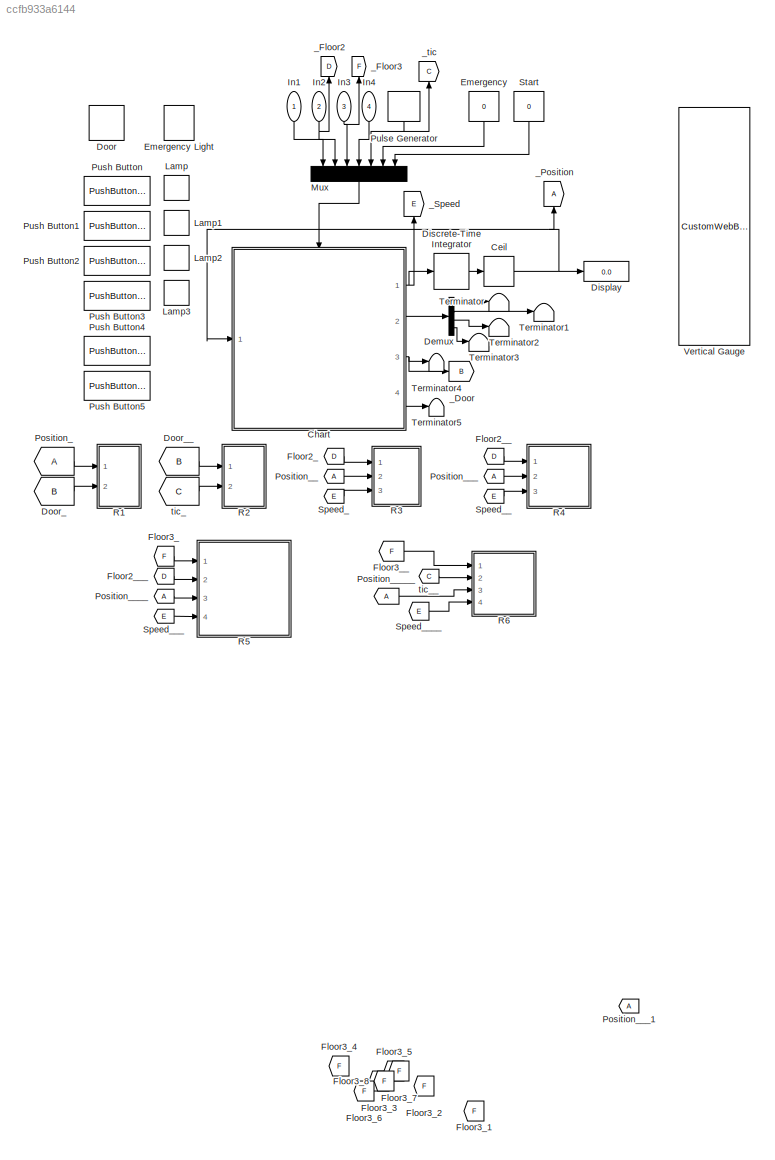
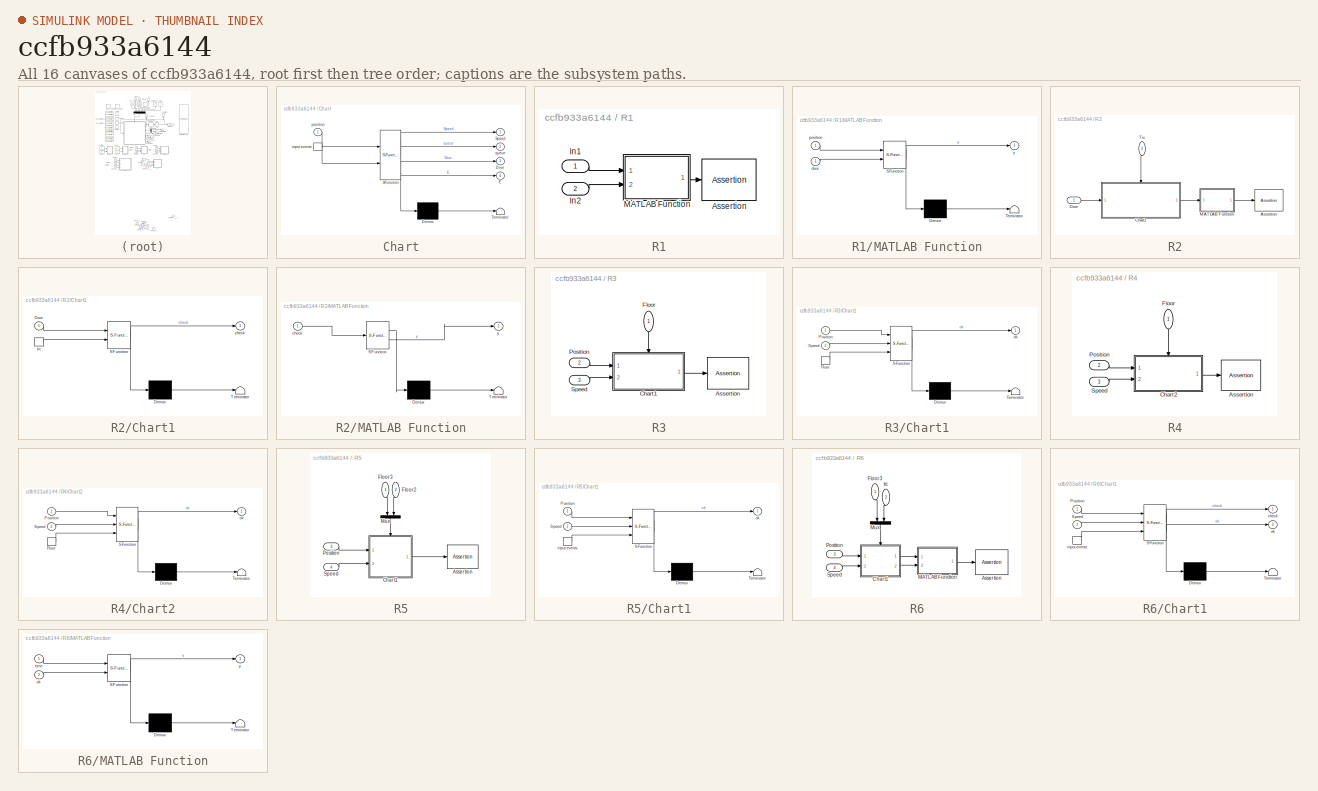
[diagram: thumbnail index - all 16 canvases of the model, root first then tree order]
MODEL slx_ccfb933a6144
KIND model
CONFIG AbsTol = auto
CONFIG EnableMultiTasking = off
CONFIG FixedStep = auto
CONFIG MaxStep = auto
CONFIG MinStep = auto
CONFIG RelTol = 1e-3
CONFIG SampleTimeConstraint = Unconstrained
CONFIG Solver = FixedStepAuto
CONFIG SolverName = FixedStepAuto
CONFIG StartTime = 0.0
CONFIG StopTime = inf
BLOCK [Rounding] Ceil
  Operator = ceil
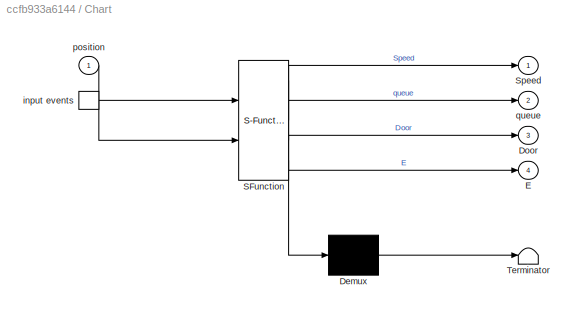
BLOCK [SubSystem] Chart
  ErrorFcn = Stateflow.Translate.translate
  PermitHierarchicalResolution = ExplicitOnly
  Ports = [1, 4, 0, 1]
  RequestExecContextInheritance = off
  SFBlockType = Chart
  TreatAsAtomicUnit = on
BLOCK [Demux] Chart/ Demux 
  Outputs = 1
  Ports = [1, 1]
BLOCK [S-Function] Chart/ SFunction 
  EnableBusSupport = on
  FunctionName = sf_sfun
  PortCounts = [2 5]
  Ports = [2, 5]
  SFcnIsStateOwnerBlock = off
  SFunctionDeploymentMode = off
  Tag = Stateflow S-Function 3
BLOCK [Terminator] Chart/ Terminator 
BLOCK [Outport] Chart/Door
  Port = 3
BLOCK [Outport] Chart/E
  Port = 4
BLOCK [Outport] Chart/Speed
BLOCK [TriggerPort] Chart/input events
  Ports = [0, 1]
  ShowOutputPort = on
  StatesWhenEnabling = held
  VariantControl = (inherit)
BLOCK [Inport] Chart/position
BLOCK [Outport] Chart/queue
  Port = 2
BLOCK [Demux] Demux
  Ports = [1, 4]
BLOCK [DiscreteIntegrator] Discrete-Time Integrator
  ICPrevOutput = DiscIntNeverNeededParam
  ICPrevScaledInput = DiscIntNeverNeededParam
  InitialCondition = 0.001
  InitialConditionSetting = Auto
  Ports = [1, 1]
  SampleTime = -1
BLOCK [Display] Display
  Decimation = 1
  Ports = [1]
BLOCK [LampBlock] Door
BLOCK [From] Door_
  GotoTag = B
BLOCK [From] Door__
  GotoTag = B
  NameLocation = top
BLOCK [Constant] Emergency
  NameLocation = top
  Value = 0
BLOCK [LampBlock] Emergency Light
BLOCK [From] Floor2_
  GotoTag = D
  NameLocation = left
BLOCK [From] Floor2__
  GotoTag = D
  NameLocation = left
BLOCK [From] Floor2___
  GotoTag = D
  NameLocation = left
BLOCK [From] Floor3_
  GotoTag = F
  NameLocation = left
BLOCK [From] Floor3_1
  GotoTag = F
  NameLocation = left
BLOCK [From] Floor3_2
  GotoTag = F
  NameLocation = left
BLOCK [From] Floor3_3
  GotoTag = F
  NameLocation = left
BLOCK [From] Floor3_4
  GotoTag = F
  NameLocation = left
BLOCK [From] Floor3_5
  GotoTag = F
  NameLocation = left
BLOCK [From] Floor3_6
  GotoTag = F
  NameLocation = left
BLOCK [From] Floor3_7
  GotoTag = F
  NameLocation = left
BLOCK [From] Floor3_8
  GotoTag = F
  NameLocation = left
BLOCK [From] Floor3__
  GotoTag = F
  NameLocation = left
BLOCK [Inport] In1
  NameLocation = left
BLOCK [Inport] In2
  NameLocation = left
  Port = 2
BLOCK [Inport] In3
  NameLocation = left
  Port = 3
BLOCK [Inport] In4
  NameLocation = left
  Port = 4
BLOCK [LampBlock] Lamp
BLOCK [LampBlock] Lamp1
BLOCK [LampBlock] Lamp2
BLOCK [LampBlock] Lamp3
BLOCK [Mux] Mux
  DisplayOption = bar
  Inputs = 7
  NameLocation = left
  Ports = [7, 1]
BLOCK [From] Position_
  NameLocation = top
BLOCK [From] Position__
  NameLocation = left
BLOCK [From] Position___
  NameLocation = left
BLOCK [From] Position___1
  NameLocation = left
BLOCK [From] Position____
  NameLocation = left
BLOCK [From] Position_____
  NameLocation = left
BLOCK [DiscretePulseGenerator] Pulse Generator
  NameLocation = left
  Period = 1
  Ports = [0, 1]
  PulseType = Time based
  PulseWidth = 50
BLOCK [PushButtonBlock] Push Button
  ButtonText = floor1
BLOCK [PushButtonBlock] Push Button1
  ButtonText = floor2
BLOCK [PushButtonBlock] Push Button2
  ButtonText = floor3
BLOCK [PushButtonBlock] Push Button3
  ButtonText = floor4
BLOCK [PushButtonBlock] Push Button4
  ButtonText = Emergency
BLOCK [PushButtonBlock] Push Button5
  ButtonText = Start
BLOCK [SubSystem] R1
  Ports = [2]
  RequestExecContextInheritance = off
BLOCK [Assertion] R1/Assertion
BLOCK [Inport] R1/In1
BLOCK [Inport] R1/In2
  Port = 2
BLOCK [SubSystem] R1/MATLAB Function
  ErrorFcn = Stateflow.Translate.translate
  PermitHierarchicalResolution = ExplicitOnly
  Ports = [2, 1]
  RequestExecContextInheritance = off
  SFBlockType = MATLAB Function
  TreatAsAtomicUnit = on
BLOCK [Demux] R1/MATLAB Function/ Demux 
  Outputs = 1
  Ports = [1, 1]
BLOCK [S-Function] R1/MATLAB Function/ SFunction 
  EnableBusSupport = on
  FunctionName = sf_sfun
  PortCounts = [2 2]
  Ports = [2, 2]
  SFcnIsStateOwnerBlock = off
  SFunctionDeploymentMode = off
  Tag = Stateflow S-Function 2
BLOCK [Terminator] R1/MATLAB Function/ Terminator 
BLOCK [Inport] R1/MATLAB Function/door
  Port = 2
BLOCK [Inport] R1/MATLAB Function/position
BLOCK [Outport] R1/MATLAB Function/y
BLOCK [SubSystem] R2
  Ports = [2]
  RequestExecContextInheritance = off
BLOCK [Assertion] R2/Assertion
BLOCK [SubSystem] R2/Chart1
  ErrorFcn = Stateflow.Translate.translate
  PermitHierarchicalResolution = ExplicitOnly
  Ports = [1, 1, 0, 1]
  RequestExecContextInheritance = off
  SFBlockType = Chart
  TreatAsAtomicUnit = on
BLOCK [Demux] R2/Chart1/ Demux 
  Outputs = 1
  Ports = [1, 1]
BLOCK [S-Function] R2/Chart1/ SFunction 
  EnableBusSupport = on
  FunctionName = sf_sfun
  PortCounts = [2 2]
  Ports = [2, 2]
  SFcnIsStateOwnerBlock = off
  SFunctionDeploymentMode = off
  Tag = Stateflow S-Function 1
BLOCK [Terminator] R2/Chart1/ Terminator 
BLOCK [Inport] R2/Chart1/Door
BLOCK [Outport] R2/Chart1/check
BLOCK [TriggerPort] R2/Chart1/tic
  Ports = [0, 1]
  ShowOutputPort = on
  StatesWhenEnabling = held
  VariantControl = (inherit)
BLOCK [Inport] R2/Door
BLOCK [SubSystem] R2/MATLAB Function
  ErrorFcn = Stateflow.Translate.translate
  PermitHierarchicalResolution = ExplicitOnly
  Ports = [1, 1]
  RequestExecContextInheritance = off
  SFBlockType = MATLAB Function
  TreatAsAtomicUnit = on
BLOCK [Demux] R2/MATLAB Function/ Demux 
  Outputs = 1
  Ports = [1, 1]
BLOCK [S-Function] R2/MATLAB Function/ SFunction 
  EnableBusSupport = on
  FunctionName = sf_sfun
  PortCounts = [1 2]
  Ports = [1, 2]
  SFcnIsStateOwnerBlock = off
  SFunctionDeploymentMode = off
  Tag = Stateflow S-Function 4
BLOCK [Terminator] R2/MATLAB Function/ Terminator 
BLOCK [Inport] R2/MATLAB Function/check
BLOCK [Outport] R2/MATLAB Function/y
BLOCK [Inport] R2/Tic
  NameLocation = left
  Port = 2
BLOCK [SubSystem] R3
  Ports = [3]
  RequestExecContextInheritance = off
BLOCK [Assertion] R3/Assertion
BLOCK [SubSystem] R3/Chart1
  ErrorFcn = Stateflow.Translate.translate
  PermitHierarchicalResolution = ExplicitOnly
  Ports = [2, 1, 0, 1]
  RequestExecContextInheritance = off
  SFBlockType = Chart
  TreatAsAtomicUnit = on
BLOCK [Demux] R3/Chart1/ Demux 
  Outputs = 1
  Ports = [1, 1]
BLOCK [S-Function] R3/Chart1/ SFunction 
  EnableBusSupport = on
  FunctionName = sf_sfun
  PortCounts = [3 2]
  Ports = [3, 2]
  SFcnIsStateOwnerBlock = off
  SFunctionDeploymentMode = off
  Tag = Stateflow S-Function 5
BLOCK [Terminator] R3/Chart1/ Terminator 
BLOCK [TriggerPort] R3/Chart1/Floor
  Ports = [0, 1]
  ShowOutputPort = on
  StatesWhenEnabling = held
  VariantControl = (inherit)
BLOCK [Inport] R3/Chart1/Position
BLOCK [Inport] R3/Chart1/Speed
  Port = 2
BLOCK [Outport] R3/Chart1/ok
BLOCK [Inport] R3/Floor
  NameLocation = right
BLOCK [Inport] R3/Position
  NameLocation = top
  Port = 2
BLOCK [Inport] R3/Speed
  Port = 3
BLOCK [SubSystem] R4
  Ports = [3]
  RequestExecContextInheritance = off
BLOCK [Assertion] R4/Assertion
BLOCK [SubSystem] R4/Chart2
  ErrorFcn = Stateflow.Translate.translate
  PermitHierarchicalResolution = ExplicitOnly
  Ports = [2, 1, 0, 1]
  RequestExecContextInheritance = off
  SFBlockType = Chart
  TreatAsAtomicUnit = on
BLOCK [Demux] R4/Chart2/ Demux 
  Outputs = 1
  Ports = [1, 1]
BLOCK [S-Function] R4/Chart2/ SFunction 
  EnableBusSupport = on
  FunctionName = sf_sfun
  PortCounts = [3 2]
  Ports = [3, 2]
  SFcnIsStateOwnerBlock = off
  SFunctionDeploymentMode = off
  Tag = Stateflow S-Function 7
BLOCK [Terminator] R4/Chart2/ Terminator 
BLOCK [TriggerPort] R4/Chart2/Floor
  Ports = [0, 1]
  ShowOutputPort = on
  StatesWhenEnabling = held
  VariantControl = (inherit)
BLOCK [Inport] R4/Chart2/Position
BLOCK [Inport] R4/Chart2/Speed
  Port = 2
BLOCK [Outport] R4/Chart2/ok
BLOCK [Inport] R4/Floor
  NameLocation = left
BLOCK [Inport] R4/Position
  NameLocation = top
  Port = 2
BLOCK [Inport] R4/Speed
  Port = 3
BLOCK [SubSystem] R5
  Ports = [4]
  RequestExecContextInheritance = off
BLOCK [Inport] R5/	Floor3
  NameLocation = left
BLOCK [Assertion] R5/Assertion
BLOCK [SubSystem] R5/Chart1
  ErrorFcn = Stateflow.Translate.translate
  PermitHierarchicalResolution = ExplicitOnly
  Ports = [2, 1, 0, 1]
  RequestExecContextInheritance = off
  SFBlockType = Chart
  TreatAsAtomicUnit = on
BLOCK [Demux] R5/Chart1/ Demux 
  Outputs = 1
  Ports = [1, 1]
BLOCK [S-Function] R5/Chart1/ SFunction 
  EnableBusSupport = on
  FunctionName = sf_sfun
  PortCounts = [3 2]
  Ports = [3, 2]
  SFcnIsStateOwnerBlock = off
  SFunctionDeploymentMode = off
  Tag = Stateflow S-Function 6
BLOCK [Terminator] R5/Chart1/ Terminator 
BLOCK [Inport] R5/Chart1/Position
BLOCK [Inport] R5/Chart1/Speed
  Port = 2
BLOCK [TriggerPort] R5/Chart1/input events
  Ports = [0, 1]
  ShowOutputPort = on
  StatesWhenEnabling = held
  VariantControl = (inherit)
BLOCK [Outport] R5/Chart1/ok
BLOCK [Inport] R5/Floor2
  NameLocation = right
  Port = 2
BLOCK [Mux] R5/Mux
  DisplayOption = bar
  Inputs = 2
  NameLocation = left
  Ports = [2, 1]
BLOCK [Inport] R5/Position
  NameLocation = top
  Port = 3
BLOCK [Inport] R5/Speed
  Port = 4
BLOCK [SubSystem] R6
  Ports = [4]
  RequestExecContextInheritance = off
BLOCK [Assertion] R6/Assertion
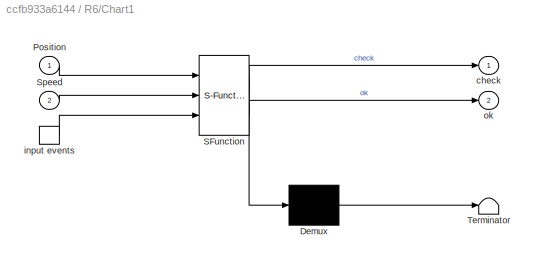
BLOCK [SubSystem] R6/Chart1
  ErrorFcn = Stateflow.Translate.translate
  PermitHierarchicalResolution = ExplicitOnly
  Ports = [2, 2, 0, 1]
  RequestExecContextInheritance = off
  SFBlockType = Chart
  TreatAsAtomicUnit = on
BLOCK [Demux] R6/Chart1/ Demux 
  Outputs = 1
  Ports = [1, 1]
BLOCK [S-Function] R6/Chart1/ SFunction 
  EnableBusSupport = on
  FunctionName = sf_sfun
  PortCounts = [3 3]
  Ports = [3, 3]
  SFcnIsStateOwnerBlock = off
  SFunctionDeploymentMode = off
  Tag = Stateflow S-Function 8
BLOCK [Terminator] R6/Chart1/ Terminator 
BLOCK [Inport] R6/Chart1/Position
BLOCK [Inport] R6/Chart1/Speed
  Port = 2
BLOCK [Outport] R6/Chart1/check
BLOCK [TriggerPort] R6/Chart1/input events
  Ports = [0, 1]
  ShowOutputPort = on
  StatesWhenEnabling = held
  VariantControl = (inherit)
BLOCK [Outport] R6/Chart1/ok
  Port = 2
BLOCK [Inport] R6/Floor3
  NameLocation = left
BLOCK [SubSystem] R6/MATLAB Function
  ErrorFcn = Stateflow.Translate.translate
  PermitHierarchicalResolution = ExplicitOnly
  Ports = [2, 1]
  RequestExecContextInheritance = off
  SFBlockType = MATLAB Function
  TreatAsAtomicUnit = on
BLOCK [Demux] R6/MATLAB Function/ Demux 
  Outputs = 1
  Ports = [1, 1]
BLOCK [S-Function] R6/MATLAB Function/ SFunction 
  EnableBusSupport = on
  FunctionName = sf_sfun
  PortCounts = [2 2]
  Ports = [2, 2]
  SFcnIsStateOwnerBlock = off
  SFunctionDeploymentMode = off
  Tag = Stateflow S-Function 9
BLOCK [Terminator] R6/MATLAB Function/ Terminator 
BLOCK [Inport] R6/MATLAB Function/ok
  Port = 2
BLOCK [Inport] R6/MATLAB Function/time
BLOCK [Outport] R6/MATLAB Function/y
BLOCK [Mux] R6/Mux
  DisplayOption = bar
  Inputs = 2
  NameLocation = left
  Ports = [2, 1]
BLOCK [Inport] R6/Position
  NameLocation = top
  Port = 3
BLOCK [Inport] R6/Speed
  Port = 4
BLOCK [Inport] R6/tic
  NameLocation = right
  Port = 2
BLOCK [From] Speed_
  GotoTag = E
  NameLocation = left
BLOCK [From] Speed__
  GotoTag = E
  NameLocation = left
BLOCK [From] Speed___
  GotoTag = E
  NameLocation = left
BLOCK [From] Speed____
  GotoTag = E
  NameLocation = left
BLOCK [Constant] Start
  NameLocation = top
  Value = 0
BLOCK [Terminator] Terminator
BLOCK [Terminator] Terminator1
BLOCK [Terminator] Terminator2
BLOCK [Terminator] Terminator3
BLOCK [Terminator] Terminator4
BLOCK [Terminator] Terminator5
BLOCK [CustomWebBlock] Vertical Gauge
  Configuration = {"components":[{"name":"LinearScaleComponent","settings":{"bounds":{"max":4,"min":1,"tickInterval":"auto"},"labelColor":[250,245,199],"labelFont":{"font":"Arial","fontSize":12},"labelTransparency":1,"needleImage":{"size":[21,75],"src":"data:image\/svg+xml;base64,PHN2ZyB4bWxucz0iaHR0cDovL3d3dy53My5vcmcvMjAwMC9zdmciIHhtbG5zOnhsaW5rPSJodHRwOi8vd3d3LnczLm9yZy8xOTk5L3hsaW5rIiB2aWV3Qm94PSIwIDAgMjEgNzUiP...<+5497ch>
  ShowInitialText = on
BLOCK [Goto] _Door
  GotoTag = B
BLOCK [Goto] _Floor2
  GotoTag = D
  NameLocation = left
BLOCK [Goto] _Floor3
  GotoTag = F
  NameLocation = right
BLOCK [Goto] _Position
  NameLocation = right
BLOCK [Goto] _Speed
  GotoTag = E
  NameLocation = right
BLOCK [Goto] _tic
  GotoTag = C
  NameLocation = top
BLOCK [From] tic_
  GotoTag = C
BLOCK [From] tic__
  GotoTag = C
  NameLocation = left
NET Ceil:1 -> Chart:1, Display:1, _Position:1
NET Chart:1 -> Discrete-Time Integrator:1, _Speed:1
LINE Chart:2 -> Demux:1
NET Chart:3 -> Terminator4:1, _Door:1
LINE Chart:4 -> Terminator5:1
LINE Demux:1 -> Terminator:1
LINE Demux:2 -> Terminator1:1
LINE Demux:3 -> Terminator2:1
LINE Demux:4 -> Terminator3:1
LINE Discrete-Time Integrator:1 -> Ceil:1
LINE Door_:1 -> R1:2
LINE Door__:1 -> R2:1
LINE Emergency:1 -> Mux:6
LINE Floor2_:1 -> R3:1
LINE Floor2__:1 -> R4:1
LINE Floor2___:1 -> R5:2
LINE Floor3_:1 -> R5:1
LINE Floor3__:1 -> R6:1
LINE In1:1 -> Mux:1
NET In2:1 -> Mux:2, _Floor2:1
NET In3:1 -> Mux:3, _Floor3:1
LINE In4:1 -> Mux:4
LINE Mux:1 -> Chart:trigger
LINE Position_:1 -> R1:1
LINE Position__:1 -> R3:2
LINE Position___:1 -> R4:2
LINE Position____:1 -> R5:3
LINE Position_____:1 -> R6:3
NET Pulse Generator:1 -> Mux:5, _tic:1
LINE R1/In1:1 -> R1/MATLAB Function:1
LINE R1/In2:1 -> R1/MATLAB Function:2
LINE R1/MATLAB Function:1 -> R1/Assertion:1
LINE R2/Chart1:1 -> R2/MATLAB Function:1
LINE R2/Door:1 -> R2/Chart1:1
LINE R2/MATLAB Function:1 -> R2/Assertion:1
LINE R2/Tic:1 -> R2/Chart1:trigger
LINE R3/Chart1:1 -> R3/Assertion:1
LINE R3/Floor:1 -> R3/Chart1:trigger
LINE R3/Position:1 -> R3/Chart1:1
LINE R3/Speed:1 -> R3/Chart1:2
LINE R4/Chart2:1 -> R4/Assertion:1
LINE R4/Floor:1 -> R4/Chart2:trigger
LINE R4/Position:1 -> R4/Chart2:1
LINE R4/Speed:1 -> R4/Chart2:2
LINE R5/	Floor3:1 -> R5/Mux:1
LINE R5/Chart1:1 -> R5/Assertion:1
LINE R5/Floor2:1 -> R5/Mux:2
LINE R5/Mux:1 -> R5/Chart1:trigger
LINE R5/Position:1 -> R5/Chart1:1
LINE R5/Speed:1 -> R5/Chart1:2
LINE R6/Chart1:1 -> R6/MATLAB Function:1
LINE R6/Chart1:2 -> R6/MATLAB Function:2
LINE R6/Floor3:1 -> R6/Mux:1
LINE R6/MATLAB Function:1 -> R6/Assertion:1
LINE R6/Mux:1 -> R6/Chart1:trigger
LINE R6/Position:1 -> R6/Chart1:1
LINE R6/Speed:1 -> R6/Chart1:2
LINE R6/tic:1 -> R6/Mux:2
LINE Speed_:1 -> R3:3
LINE Speed__:1 -> R4:3
LINE Speed___:1 -> R5:4
LINE Speed____:1 -> R6:4
LINE Start:1 -> Mux:7
LINE tic_:1 -> R2:2
LINE tic__:1 -> R6:2
note: NET lines group one-source signal fan-out (src -> all destinations, sorted); 1:1 wires keep LINE
CHART R2/Chart1 states=3 transitions=3
  STATE_LABEL 'Door_open'
  STATE_LABEL 'counter\non tic: check=check+1;'
  STATE_LABEL 'Door_close'
CHART R1/MATLAB Function states=1 transitions=1
  STATE_LABEL 'eML_blk_kernel()'
  STATE_LABEL 'SCRIPT:\nfunction y = fcn(position,door)\nif (position~=1 || position~=2 || position~=3 || position~=4) && door==1\n    y=0;\nelse\n    y=1;\nend\n'
CHART Chart states=7 transitions=21
  STATE_LABEL 'out = floor_check'
  STATE_LABEL 'SCRIPT:\nfunction out = floor_check\nif queue(2)&& position<2\n    dest=2;\n    out=1;  \nelseif queue(3) && position<3\n    dest=3;\n    out=1;\nelseif queue(4)&& position~=4\n    dest=4;\n    out=1;\nelseif queue(1)&& position~=1\n    dest=1;\n    out=0;\nelseif queue(2)&& position>2\n    dest=2;\n    out=0;\nelseif queue(3)&& position>3\n    dest=3;\n    out=0;\nelse\n    out=-1;\nend\n    \n    \n \n'
  STATE_LABEL 'Init\non floor1: queue(1)=1;new_dest=1;\non floor2: queue(2)=1;new_dest=2;\non floor3: queue(3)=1;new_dest=3;\non floor4: queue(4)=1;new_dest=4;'
  STATE_LABEL 'Up\nSpeed=0.2;'
  STATE_LABEL 'Door\nSpeed=0;Door=1;\n'
  STATE_LABEL '[flag==1]{queue(dest)=0;}'
  STATE_LABEL '[flag==0]{queue(new_dest)=0;new_dest=0;}'
  STATE_LABEL 'Idle_state\n'
  STATE_LABEL 'Emergency\nSpeed=0;'
  STATE_LABEL 'Down\nSpeed=-0.2;'
  STATE_LABEL '[queue(position)]'
  STATE_LABEL '[(new_dest<dest && new_dest>=position) && position>=new_dest-0.02]{flag=0;}'
  STATE_LABEL '[floor_check==1]'
  STATE_LABEL '[position>=dest-0.02]{flag=1;}'
  STATE_LABEL 'Emergency{u=1;E=1;}'
  STATE_LABEL 'Start[u==1]{u=0;E=0;}'
  STATE_LABEL 'Emergency{do=1;E=1;}'
  STATE_LABEL 'Emergency{i=1;E=1;}'
  STATE_LABEL 'Start[i==1]{E=0;i=0;}'
  STATE_LABEL 'Start[do==1]{do=0;E=0;}'
  STATE_LABEL '[after(5,sec)]{Door=0;}'
  STATE_LABEL 'Emergency{d=1;E=1;}'
  STATE_LABEL 'Start[d==1]{d=0;E=0;}'
  STATE_LABEL '[floor_check==0]'
  STATE_LABEL '[position<=dest+0.02]{flag=1;}'
  STATE_LABEL '[(new_dest>dest && new_dest<=position) && position<=new_dest+0.02]{flag=0;}'
  STATE_LABEL 'Up\nSpeed=0.2;'
  STATE_LABEL 'Door\nSpeed=0;Door=1;\n'
  STATE_LABEL '[flag==1]{queue(dest)=0;}'
  STATE_LABEL '[flag==0]{queue(new_dest)=0;new_dest=0;}'
  STATE_LABEL 'Idle_state\n'
  STATE_LABEL 'Emergency\nSpeed=0;'
  STATE_LABEL 'Down\nSpeed=-0.2;'
CHART R2/MATLAB Function states=1 transitions=1
  STATE_LABEL 'eML_blk_kernel()'
  STATE_LABEL 'SCRIPT:\nfunction y = fcn(check)\nif check<5\n    y=0;\nelse\n    y=1;\nend\n'
CHART R3/Chart1 states=4 transitions=4
  STATE_LABEL 'OnFloorPress\n'
  STATE_LABEL 'StopAtFloor_2\nok=1;'
  STATE_LABEL 'StopAtFloor'
  STATE_LABEL 'StopAtFloor2\nok=0;'
CHART R5/Chart1 states=7 transitions=8
  STATE_LABEL 'Check'
  STATE_LABEL 'Reached_A\nok=0;'
  STATE_LABEL 'FloorA'
  STATE_LABEL 'FloorB'
  STATE_LABEL 'Floor_A'
  STATE_LABEL 'Reached_B\nok=1;'
  STATE_LABEL 'Reached__A'
CHART R4/Chart2 states=6 transitions=7
  STATE_LABEL 'OnFloorPress\n'
  STATE_LABEL 'StopAtFloor_2\nok=1;'
  STATE_LABEL 'StopAtFloor'
  STATE_LABEL 'CheckAgain'
  STATE_LABEL 'StopAtFloor2\nok=0;'
  STATE_LABEL 'BackToFloor'
CHART R6/Chart1 states=3 transitions=3
  STATE_LABEL 'Counter\non tic: check=check+1;'
  STATE_LABEL 'Init'
  STATE_LABEL 'Reached\nok=1;'
CHART R6/MATLAB Function states=1 transitions=1
  STATE_LABEL 'eML_blk_kernel()'
  STATE_LABEL 'SCRIPT:\nfunction y = fcn(time,ok)\nif time<26 && ok==1\n    y=0;\nelse \n    y=1;\nend'
CHART  states=0 transitions=0
CHART  states=0 transitions=0
CHART  states=0 transitions=0
CHART  states=0 transitions=0
CHART  states=0 transitions=0
CHART  states=0 transitions=0
CHART  states=0 transitions=0
CHART  states=0 transitions=0
CHART  states=0 transitions=0
